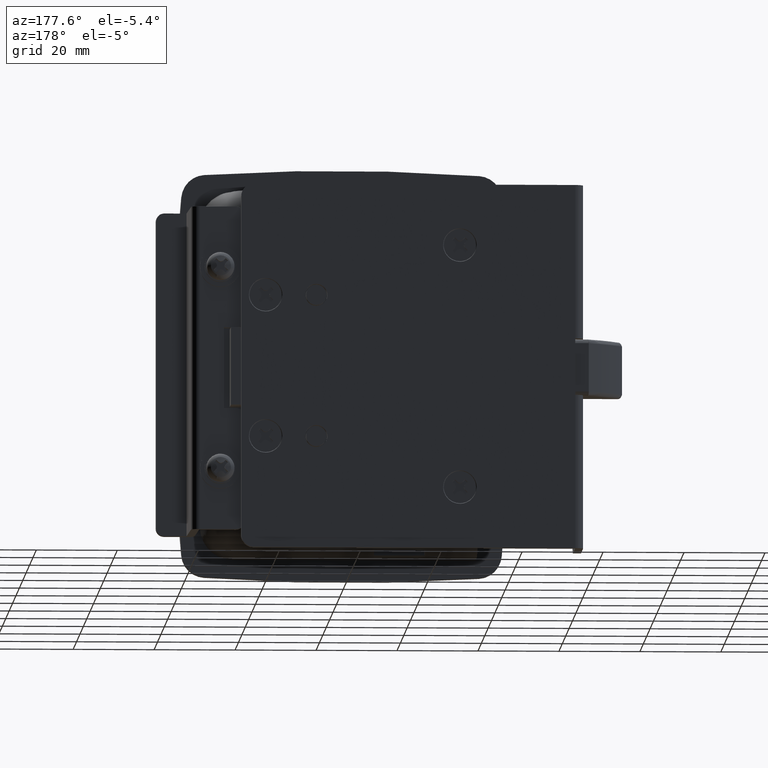
[diagram: clean part render]
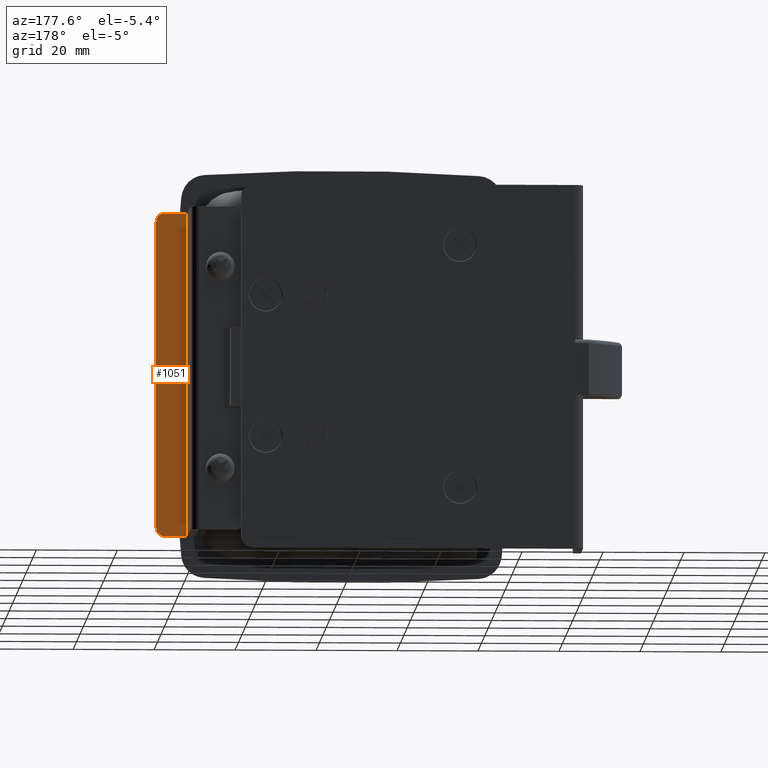
[diagram: same view with one face highlighted and labeled with its STEP entity id]
A machine part, auxiliary view. The second image highlights one B-rep face of the part: STEP entity #1051.
In plain terms, the highlighted face is a freeform B-spline surface patch.
Its self-contained STEP definition (entity closure, byte-faithful):
#662=CARTESIAN_POINT('',(45.856718059574497,-26.024088388703952,38.0));
#663=VERTEX_POINT('',#662);
#669=CARTESIAN_POINT('',(43.857248801491153,-26.070161005079150,40.0));
#670=VERTEX_POINT('',#669);
#671=CARTESIAN_POINT('',(43.857248801491153,-26.070161005079150,40.0));
#672=CARTESIAN_POINT('',(44.037189297420433,-26.066014740061139,40.000055155055442));
#673=CARTESIAN_POINT('',(44.380671222739153,-26.058100084252910,39.953292361337297));
#674=CARTESIAN_POINT('',(44.913697733767627,-26.045817861927549,39.732606875958318));
#675=CARTESIAN_POINT('',(45.388509143265694,-26.034877056595310,39.342847440064730));
#676=CARTESIAN_POINT('',(45.762216179432272,-26.026265940998339,38.736171332597067));
#677=CARTESIAN_POINT('',(45.856985059504773,-26.024082236378771,38.261826988007968));
#678=CARTESIAN_POINT('',(45.856718059574497,-26.024088388703952,38.0));
#679=B_SPLINE_CURVE_WITH_KNOTS('',3,(#671,#672,#673,#674,#675,#676,#677,#678),.UNSPECIFIED.,.F.,.U.,(4,1,1,1,1,4),(0.000000207716568,0.539959892312377,1.030875428758547,1.718064936359036,2.356253668635598,3.141671488685206),.UNSPECIFIED.);
#680=EDGE_CURVE('',#670,#663,#679,.T.);
#720=CARTESIAN_POINT('',(43.857248801491153,-26.070161005079150,-39.999699999999997));
#721=VERTEX_POINT('',#720);
#727=CARTESIAN_POINT('',(45.856718059574497,-26.024088388703952,-37.999699999999997));
#728=VERTEX_POINT('',#727);
#729=CARTESIAN_POINT('',(45.856718059574497,-26.024088388703952,-37.999699999999997));
#730=CARTESIAN_POINT('',(45.856772818984730,-26.024087126914459,-38.179687480487161));
#731=CARTESIAN_POINT('',(45.810042788879329,-26.025163900033920,-38.523275471107539));
#732=CARTESIAN_POINT('',(45.627120031520697,-26.029378883581028,-38.964987229726731));
#733=CARTESIAN_POINT('',(45.381015445909789,-26.035049729539740,-39.314481750986282));
#734=CARTESIAN_POINT('',(45.095308955987882,-26.041633099327509,-39.586560928255203));
#735=CARTESIAN_POINT('',(44.734262596873947,-26.049952482248852,-39.815279743898998));
#736=CARTESIAN_POINT('',(44.315276704696018,-26.059606932398001,-39.965233530552581));
#737=CARTESIAN_POINT('',(44.004469401340657,-26.066768685746322,-39.999720151972262));
#738=CARTESIAN_POINT('',(43.857248801491153,-26.070161005079150,-39.999699999999997));
#739=B_SPLINE_CURVE_WITH_KNOTS('',3,(#729,#730,#731,#732,#733,#734,#735,#736,#737,#738),.UNSPECIFIED.,.F.,.U.,(4,1,1,1,1,1,1,4),(0.000000207718722,0.539959892314555,1.030875428760930,1.423606843871769,1.816273986705034,2.208982566512712,2.699880834869797,3.141671488685123),.UNSPECIFIED.);
#740=EDGE_CURVE('',#728,#721,#739,.T.);
#911=CARTESIAN_POINT('',(38.357708607132899,-26.196883736419199,40.0));
#912=VERTEX_POINT('',#911);
#913=CARTESIAN_POINT('',(43.857248801491153,-26.070161005079150,40.0));
#914=CARTESIAN_POINT('',(38.357708607132899,-26.196883736419199,40.0));
#915=QUASI_UNIFORM_CURVE('',1,(#913,#914),.UNSPECIFIED.,.F.,.U.);
#916=EDGE_CURVE('',#670,#912,#915,.T.);
#973=CARTESIAN_POINT('',(38.357708607132899,-26.196883736419199,-39.999699999999997));
#974=VERTEX_POINT('',#973);
#980=CARTESIAN_POINT('',(43.857248801491153,-26.070161005079150,-39.999699999999997));
#981=CARTESIAN_POINT('',(38.357708607132899,-26.196883736419199,-39.999699999999997));
#982=QUASI_UNIFORM_CURVE('',1,(#980,#981),.UNSPECIFIED.,.F.,.U.);
#983=EDGE_CURVE('',#721,#974,#982,.T.);
#1020=CARTESIAN_POINT('',(38.357708607132899,-26.196883736419199,-39.999699999999997));
#1021=CARTESIAN_POINT('',(38.357708607132899,-26.196883736419199,40.0));
#1022=QUASI_UNIFORM_CURVE('',1,(#1020,#1021),.UNSPECIFIED.,.F.,.U.);
#1023=EDGE_CURVE('',#974,#912,#1022,.T.);
#1034=CARTESIAN_POINT('',(46.231291622911762,-26.015457306221361,-43.995683357985172));
#1035=CARTESIAN_POINT('',(37.983132428987247,-26.205514879153299,-43.995683357985172));
#1036=CARTESIAN_POINT('',(46.231291622911762,-26.015457306221361,43.995986934250453));
#1037=CARTESIAN_POINT('',(37.983132428987247,-26.205514879153299,43.995986934250453));
#1038=B_SPLINE_SURFACE_WITH_KNOTS('',1,1,((#1034,#1036),(#1035,#1037)),.UNSPECIFIED.,.F.,.F.,.U.,(2,2),(2,2),(0.0,8.250348596838213),(0.0,87.991670292235625),.UNSPECIFIED.);
#1039=CARTESIAN_POINT('',(45.856718059574497,-26.024088388703952,-37.999699999999997));
#1040=CARTESIAN_POINT('',(45.856718059574497,-26.024088388703952,38.0));
#1041=QUASI_UNIFORM_CURVE('',1,(#1039,#1040),.UNSPECIFIED.,.F.,.U.);
#1042=EDGE_CURVE('',#728,#663,#1041,.T.);
#1043=ORIENTED_EDGE('',*,*,#1042,.F.);
#1044=ORIENTED_EDGE('',*,*,#740,.T.);
#1045=ORIENTED_EDGE('',*,*,#983,.T.);
#1046=ORIENTED_EDGE('',*,*,#1023,.T.);
#1047=ORIENTED_EDGE('',*,*,#916,.F.);
#1048=ORIENTED_EDGE('',*,*,#680,.T.);
#1049=EDGE_LOOP('',(#1043,#1044,#1045,#1046,#1047,#1048));
#1050=FACE_OUTER_BOUND('',#1049,.T.);
#1051=ADVANCED_FACE('',(#1050),#1038,.T.);